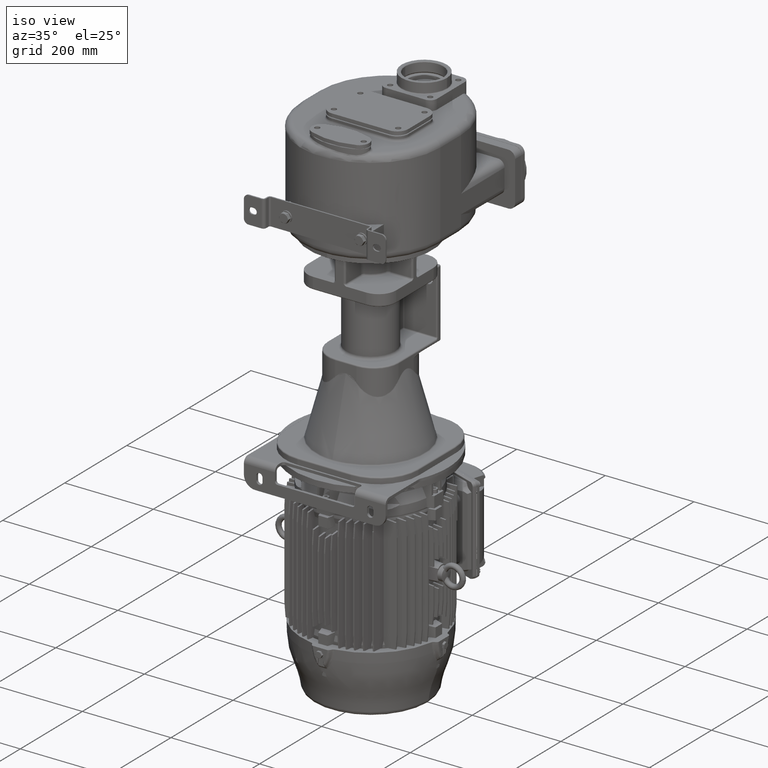
[diagram: clean part render]
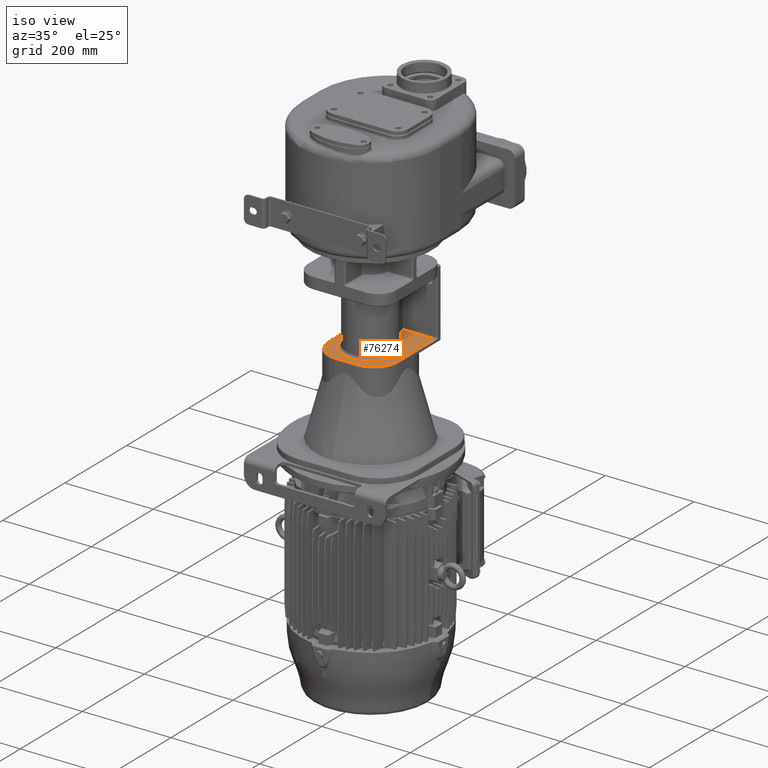
[diagram: same view with one face highlighted and labeled with its STEP entity id]
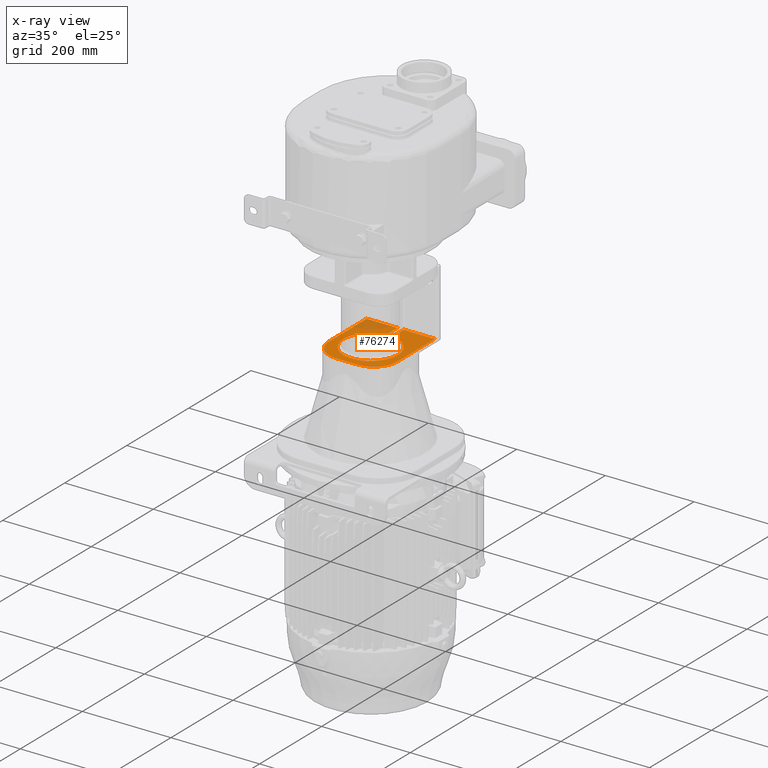
[diagram: x-ray of the same camera — body ghosted, the highlighted face saturated]
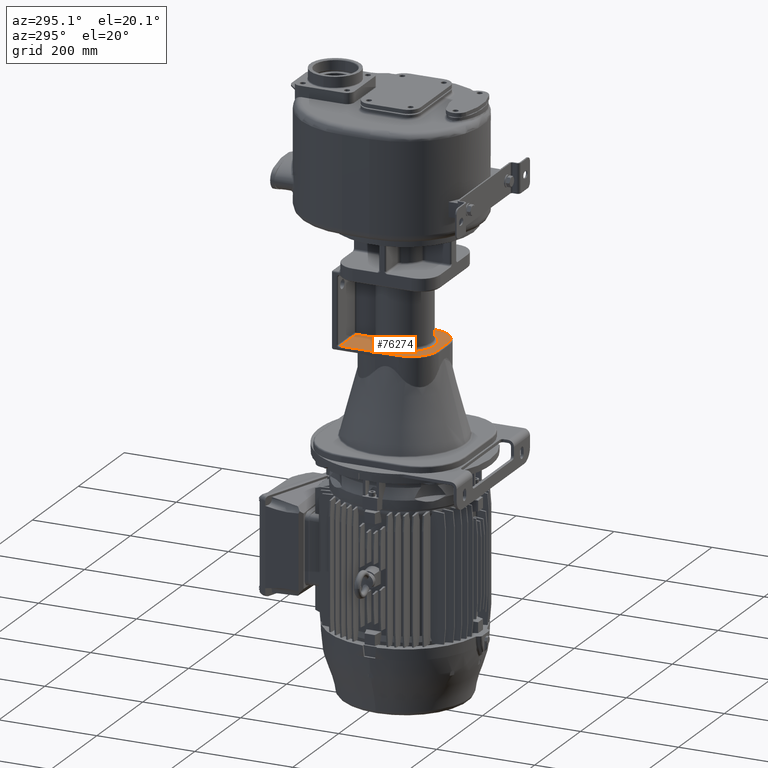
[diagram: same view with one face highlighted and labeled with its STEP entity id]
A machine part, iso view. The second image highlights one B-rep face of the part: STEP entity #76274.
The next image is the same camera in x-ray: the body ghosted, the highlighted face saturated — about 13% of this face is hidden behind the body in this view.
A second angle (auxiliary view) of the same face is appended — the face is thin or edge-on in the first view.
In plain terms, the highlighted planar face has unit normal (0, 0, -1).
Its self-contained STEP definition (entity closure, byte-faithful):
#22366=DIRECTION('',(0.E0,1.E0,-6.216507403819E-11));
#22367=VECTOR('',#22366,3.640297037011E1);
#22368=CARTESIAN_POINT('',(7.E0,2.185970296299E2,-3.084999999977E2));
#22369=LINE('',#22368,#22367);
#22370=DIRECTION('',(1.E0,0.E0,0.E0));
#22371=VECTOR('',#22370,7.E1);
#22372=CARTESIAN_POINT('',(7.E0,2.55E2,-3.085E2));
#22373=LINE('',#22372,#22371);
#22374=DIRECTION('',(0.E0,1.E0,0.E0));
#22375=VECTOR('',#22374,1.21E2);
#22376=CARTESIAN_POINT('',(7.7E1,1.34E2,-3.085E2));
#22377=LINE('',#22376,#22375);
#22378=CARTESIAN_POINT('',(2.4E1,1.34E2,-3.085E2));
#22379=DIRECTION('',(0.E0,0.E0,1.E0));
#22380=DIRECTION('',(0.E0,-1.E0,0.E0));
#22381=AXIS2_PLACEMENT_3D('',#22378,#22379,#22380);
#22383=DIRECTION('',(1.E0,0.E0,0.E0));
#22384=VECTOR('',#22383,4.8E1);
#22385=CARTESIAN_POINT('',(-2.4E1,8.1E1,-3.085E2));
#22386=LINE('',#22385,#22384);
#22387=CARTESIAN_POINT('',(-2.4E1,1.34E2,-3.085E2));
#22388=DIRECTION('',(0.E0,0.E0,1.E0));
#22389=DIRECTION('',(-1.E0,0.E0,0.E0));
#22390=AXIS2_PLACEMENT_3D('',#22387,#22388,#22389);
#22392=DIRECTION('',(0.E0,-1.E0,0.E0));
#22393=VECTOR('',#22392,1.21E2);
#22394=CARTESIAN_POINT('',(-7.7E1,2.55E2,-3.085E2));
#22395=LINE('',#22394,#22393);
#22396=DIRECTION('',(1.E0,0.E0,0.E0));
#22397=VECTOR('',#22396,7.E1);
#22398=CARTESIAN_POINT('',(-7.7E1,2.55E2,-3.085E2));
#22399=LINE('',#22398,#22397);
#22400=DIRECTION('',(0.E0,-1.E0,6.216507403819E-11));
#22401=VECTOR('',#22400,3.640297037011E1);
#22402=CARTESIAN_POINT('',(-7.E0,2.55E2,-3.085E2));
#22403=LINE('',#22402,#22401);
#22455=CARTESIAN_POINT('',(7.E0,2.185970296299E2,-3.084999999977E2));
#22457=CARTESIAN_POINT('',(1.143557708462E-13,1.58E2,-3.085E2));
#22458=DIRECTION('',(0.E0,0.E0,-1.E0));
#22459=DIRECTION('',(1.147540983627E-1,9.933939283632E-1,0.E0));
#22460=AXIS2_PLACEMENT_3D('',#22457,#22458,#22459);
#22462=CARTESIAN_POINT('',(-7.E0,2.185970296299E2,-3.084999999977E2));
#43916=CARTESIAN_POINT('',(2.4E1,8.1E1,-3.085E2));
#43917=CARTESIAN_POINT('',(7.7E1,1.34E2,-3.085E2));
#43918=VERTEX_POINT('',#43916);
#43919=VERTEX_POINT('',#43917);
#43924=CARTESIAN_POINT('',(7.7E1,2.55E2,-3.085E2));
#43925=VERTEX_POINT('',#43924);
#43928=CARTESIAN_POINT('',(-7.7E1,2.55E2,-3.085E2));
#43929=CARTESIAN_POINT('',(-7.7E1,1.34E2,-3.085E2));
#43930=VERTEX_POINT('',#43928);
#43931=VERTEX_POINT('',#43929);
#43936=CARTESIAN_POINT('',(-2.4E1,8.1E1,-3.085E2));
#43937=VERTEX_POINT('',#43936);
#44061=VERTEX_POINT('',#22455);
#44062=CARTESIAN_POINT('',(7.E0,2.55E2,-3.085E2));
#44063=VERTEX_POINT('',#44062);
#44068=VERTEX_POINT('',#22462);
#44083=CARTESIAN_POINT('',(-7.E0,2.55E2,-3.085E2));
#44084=VERTEX_POINT('',#44083);
#76248=CARTESIAN_POINT('',(1.143557708462E-13,1.58E2,-3.085E2));
#76249=DIRECTION('',(0.E0,0.E0,-1.E0));
#76250=DIRECTION('',(1.E0,0.E0,0.E0));
#76251=AXIS2_PLACEMENT_3D('',#76248,#76249,#76250);
#76252=PLANE('',#76251);
#76254=ORIENTED_EDGE('',*,*,#76253,.T.);
#76256=ORIENTED_EDGE('',*,*,#76255,.T.);
#76258=ORIENTED_EDGE('',*,*,#76257,.F.);
#76260=ORIENTED_EDGE('',*,*,#76259,.F.);
#76262=ORIENTED_EDGE('',*,*,#76261,.F.);
#76263=ORIENTED_EDGE('',*,*,#76238,.F.);
#76265=ORIENTED_EDGE('',*,*,#76264,.F.);
#76267=ORIENTED_EDGE('',*,*,#76266,.T.);
#76269=ORIENTED_EDGE('',*,*,#76268,.T.);
#76271=ORIENTED_EDGE('',*,*,#76270,.F.);
#76272=EDGE_LOOP('',(#76254,#76256,#76258,#76260,#76262,#76263,#76265,#76267,
#76269,#76271));
#76273=FACE_OUTER_BOUND('',#76272,.F.);
#76274=ADVANCED_FACE('',(#76273),#76252,.F.);
#22382=CIRCLE('',#22381,5.3E1);
#22391=CIRCLE('',#22390,5.3E1);
#22461=CIRCLE('',#22460,6.1E1);
#76238=EDGE_CURVE('',#43931,#43937,#22391,.T.);
#76253=EDGE_CURVE('',#44061,#44063,#22369,.T.);
#76255=EDGE_CURVE('',#44063,#43925,#22373,.T.);
#76257=EDGE_CURVE('',#43919,#43925,#22377,.T.);
#76259=EDGE_CURVE('',#43918,#43919,#22382,.T.);
#76261=EDGE_CURVE('',#43937,#43918,#22386,.T.);
#76264=EDGE_CURVE('',#43930,#43931,#22395,.T.);
#76266=EDGE_CURVE('',#43930,#44084,#22399,.T.);
#76268=EDGE_CURVE('',#44084,#44068,#22403,.T.);
#76270=EDGE_CURVE('',#44061,#44068,#22461,.T.);